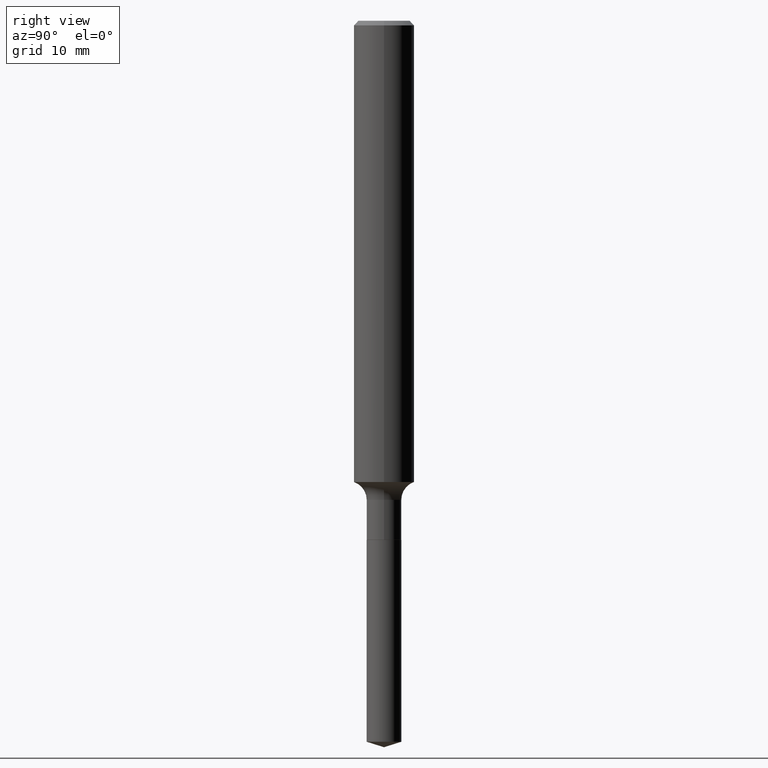
[diagram: clean part render]
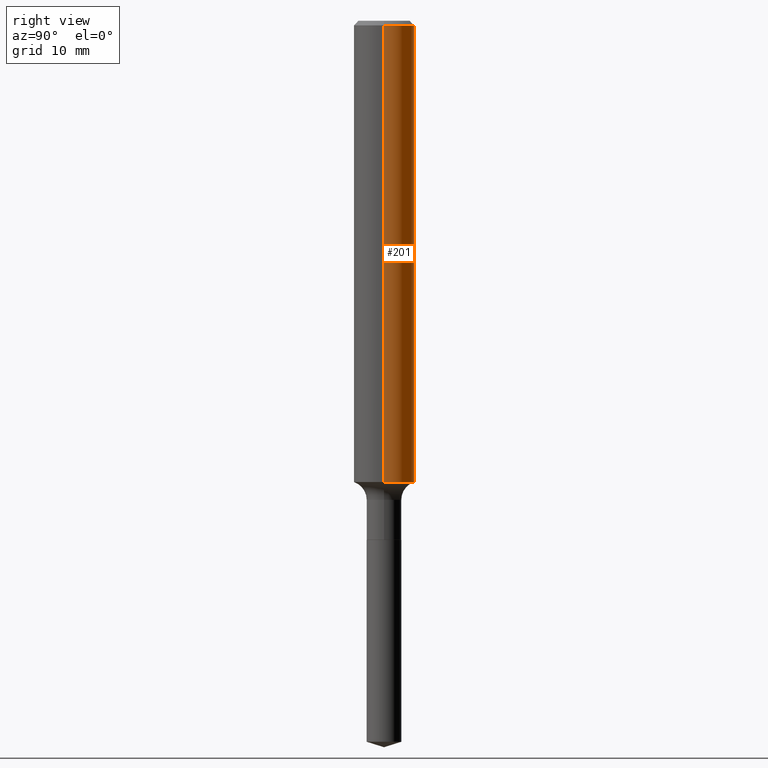
[diagram: same view with one face highlighted and labeled with its STEP entity id]
A machine part, right view. The second image highlights one B-rep face of the part: STEP entity #201.
In plain terms, the highlighted cylindrical surface (edge-blend (fillet) strip) has radius 3.175 mm, axis along (-0, 0, 1).
Its self-contained STEP definition (entity closure, byte-faithful):
#10 = DIRECTION ( 'NONE',  ( -2.445468806185136877E-29, 3.491481338843145188E-15, 1.000000000000000000 ) ) ;
#24 = EDGE_LOOP ( 'NONE', ( #245, #321, #402, #95 ) ) ;
#50 = AXIS2_PLACEMENT_3D ( 'NONE', #150, #187, #388 ) ;
#58 = VECTOR ( 'NONE', #440, 39.37007874015748143 ) ;
#83 = DIRECTION ( 'NONE',  ( 1.000000000000000000, -6.982962677686264344E-15, 0.000000000000000000 ) ) ;
#95 = ORIENTED_EDGE ( 'NONE', *, *, #293, .F. ) ;
#103 = DIRECTION ( 'NONE',  ( 1.000000000000000000, -6.982962677686266711E-15, 0.000000000000000000 ) ) ;
#106 = CIRCLE ( 'NONE', #309, 0.1250000000000002498 ) ;
#117 = EDGE_CURVE ( 'NONE', #205, #189, #192, .T. ) ;
#122 = CARTESIAN_POINT ( 'NONE',  ( 4.657431911291187376E-29, -6.649578421968497231E-15, -1.904514954151736550 ) ) ;
#134 = CARTESIAN_POINT ( 'NONE',  ( -0.1250000000000001110, 8.881784197001260212E-16, -6.148668862818637832E-30 ) ) ;
#144 = DIRECTION ( 'NONE',  ( -2.445468806185136597E-29, 3.491481338843145583E-15, 1.000000000000000000 ) ) ;
#147 = CARTESIAN_POINT ( 'NONE',  ( 0.1250000000000002776, -7.522448756679282148E-15, -1.904514954151736550 ) ) ;
#149 = CARTESIAN_POINT ( 'NONE',  ( -0.1250000000000000000, -2.469343428835775195E-15, -0.01875000000000014155 ) ) ;
#150 = CARTESIAN_POINT ( 'NONE',  ( 0.000000000000000000, 0.000000000000000000, 0.000000000000000000 ) ) ;
#187 = DIRECTION ( 'NONE',  ( -2.445468806185136597E-29, 3.491481338843145583E-15, 1.000000000000000000 ) ) ;
#189 = VERTEX_POINT ( 'NONE', #149 ) ;
#191 = LINE ( 'NONE', #311, #281 ) ;
#192 = CIRCLE ( 'NONE', #233, 0.1250000000000000000 ) ;
#201 = ADVANCED_FACE ( 'NONE', ( #384 ), #340, .T. ) ;
#205 = VERTEX_POINT ( 'NONE', #307 ) ;
#233 = AXIS2_PLACEMENT_3D ( 'NONE', #491, #144, #103 ) ;
#245 = ORIENTED_EDGE ( 'NONE', *, *, #246, .T. ) ;
#246 = EDGE_CURVE ( 'NONE', #318, #475, #106, .T. ) ;
#281 = VECTOR ( 'NONE', #10, 39.37007874015748143 ) ;
#293 = EDGE_CURVE ( 'NONE', #318, #205, #191, .T. ) ;
#307 = CARTESIAN_POINT ( 'NONE',  ( 0.1250000000000000000, -9.383356098140928781E-16, -0.01875000000000014155 ) ) ;
#309 = AXIS2_PLACEMENT_3D ( 'NONE', #122, #348, #83 ) ;
#311 = CARTESIAN_POINT ( 'NONE',  ( 0.1250000000000001110, -8.728703347107842263E-16, 6.095220969744926047E-30 ) ) ;
#318 = VERTEX_POINT ( 'NONE', #147 ) ;
#321 = ORIENTED_EDGE ( 'NONE', *, *, #480, .T. ) ;
#327 = CARTESIAN_POINT ( 'NONE',  ( -0.1250000000000002776, -5.761400002268369633E-15, -1.904514954151736550 ) ) ;
#340 = CYLINDRICAL_SURFACE ( 'NONE', #50, 0.1250000000000001110 ) ;
#348 = DIRECTION ( 'NONE',  ( -2.445468806185136597E-29, 3.491481338843145583E-15, 1.000000000000000000 ) ) ;
#384 = FACE_OUTER_BOUND ( 'NONE', #24, .T. ) ;
#388 = DIRECTION ( 'NONE',  ( 1.000000000000000000, -6.982962677686267499E-15, 4.876176775795936353E-29 ) ) ;
#402 = ORIENTED_EDGE ( 'NONE', *, *, #117, .F. ) ;
#440 = DIRECTION ( 'NONE',  ( -2.445468806185136877E-29, 3.491481338843145188E-15, 1.000000000000000000 ) ) ;
#475 = VERTEX_POINT ( 'NONE', #327 ) ;
#479 = LINE ( 'NONE', #134, #58 ) ;
#480 = EDGE_CURVE ( 'NONE', #475, #189, #479, .T. ) ;
#491 = CARTESIAN_POINT ( 'NONE',  ( 4.585254011597165626E-31, -6.546527510330947764E-17, -0.01875000000000014155 ) ) ;